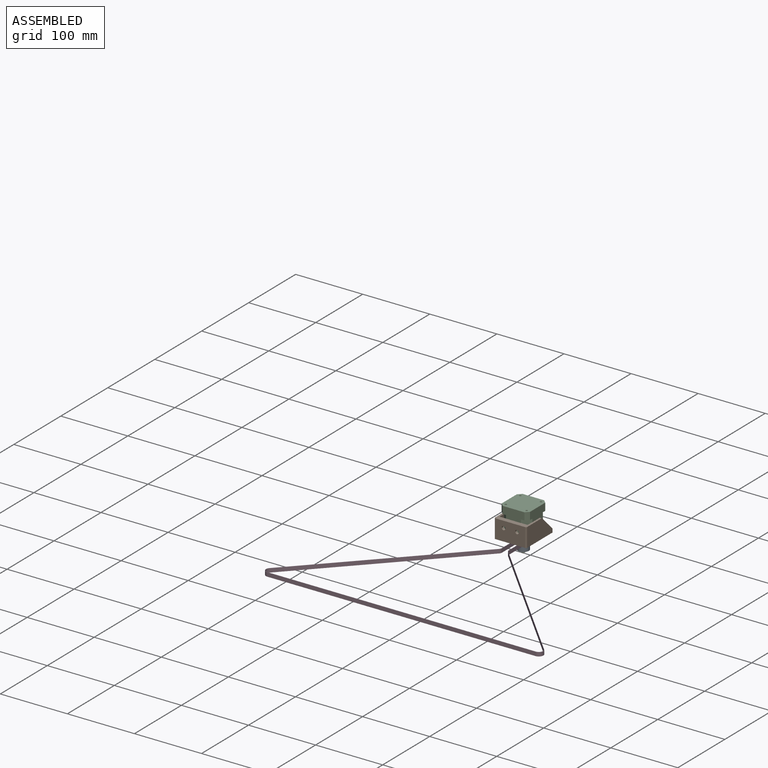
[diagram: assembled view]
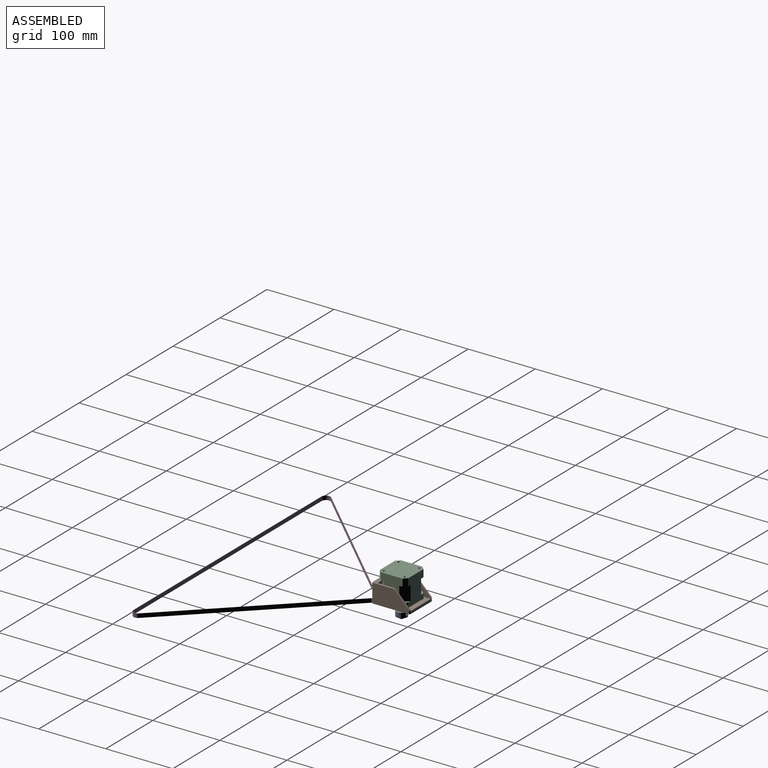
[diagram: assembled view, second angle]
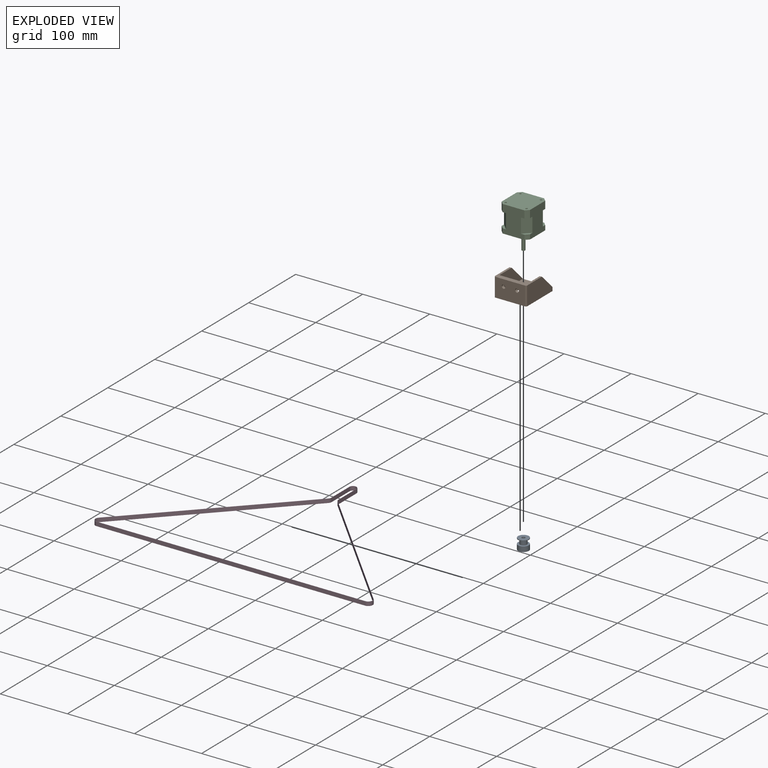
[diagram: exploded view]
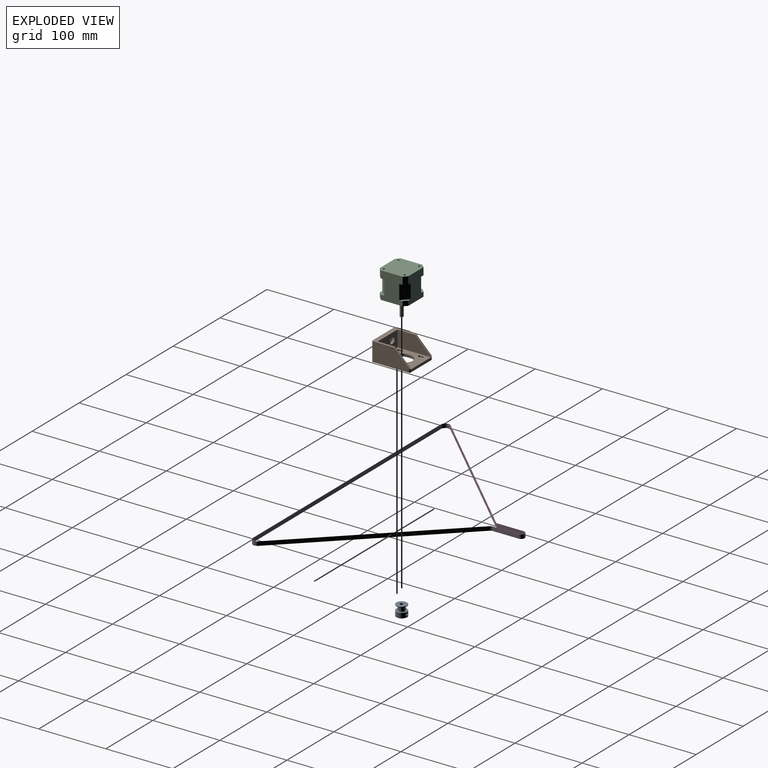
[diagram: exploded view, second angle]
ASSEMBLY  parts=4 mates=3
PART A: 10 faces, bbox 16x16x15.8 mm
  f0: cylinder r=2.5mm len=15.8mm, axis (0,0,-1), area 233.3mm2, adj f3,f6,f8,f9
  f1: cylinder r=8mm len=16mm, axis (0,0,-1), area 362.8mm2, adj f2,f3,f8,f9
  f2: plane 16x16mm, normal (0,0,1), area 119.5mm2, adj f1,f4
  f3: plane 16x16mm, normal (0,0,-1), area 181.4mm2, adj f0,f1
  f4: cylinder r=5.09mm len=10.19mm, axis (0,0,-1), area 233.7mm2, adj f2,f7
  f5: cylinder r=8mm len=16mm, axis (0,0,-1), area 50.3mm2, adj f6,f7
  f6: plane 16x16mm, normal (0,0,1), area 181.4mm2, adj f0,f5
  f7: plane 16x16mm, normal (0,0,-1), area 119.5mm2, adj f4,f5
  f8: cylinder r=1.5mm len=6mm, axis (0,1,0), area 53.5mm2, adj f0,f1
  f9: cylinder r=1.5mm len=6mm, axis (-1,0,0), area 53.5mm2, adj f0,f1
PART B: 45 faces, bbox 48x57x28 mm
  f0: plane 49.82x42mm, normal (0,0,1), area 1453.5mm2, adj f4,f5,f8,f9,f10,f11,f12,f14
  f1: plane 57x48mm, normal (0,0,-1), area 2093.6mm2, adj f6,f7,f8,f9,f10,f11,f12,f17
  f2: cylinder r=2.75mm len=5.5mm, axis (0,-1,0), area 51.8mm2, adj f17,f20
  f3: cylinder r=2.75mm len=5.5mm, axis (0,-1,0), area 51.8mm2, adj f17,f18
  f4: plane 49.82x24mm, normal (1,0,0), area 911.9mm2, adj f0,f13,f14,f15,f40,f43
  f5: plane 49.82x24mm, normal (-1,0,0), area 911.9mm2, adj f0,f13,f14,f16,f40,f44
  f6: plane 53x28mm, normal (-1,0,0), area 1241.9mm2, adj f1,f13,f15,f38,f41,f43
  f7: plane 53x28mm, normal (1,0,0), area 1241.9mm2, adj f1,f13,f16,f39,f42,f44
  f8: cylinder r=1.75mm len=4mm, axis (0,0,-1), area 22mm2, adj f0,f1,f28,f29
  f9: cylinder r=1.75mm len=4mm, axis (0,0,-1), area 22mm2, adj f0,f1,f34,f35
  f10: cylinder r=1.75mm len=4mm, axis (0,0,-1), area 22mm2, adj f0,f1,f22,f23
  f11: cylinder r=1.75mm len=4mm, axis (0,0,-1), area 22mm2, adj f0,f1,f25,f26
  f12: cylinder r=11.5mm len=23mm, axis (0,0,-1), area 144.5mm2, adj f0,f1,f31,f32
  f13: plane 48x32.17mm, normal (0,0,1), area 485.3mm2, adj f4,f5,f6,f7,f14,f17,f41,f42
  f14: plane 42x24mm, normal (0,-1,0), area 834.8mm2, adj f0,f4,f5,f13,f19,f21
  f15: plane 22.83x22.83mm, normal (0,-0.71,0.71), area 96.5mm2, adj f4,f6,f38,f40,f43
  f16: plane 22.83x22.83mm, normal (0,-0.71,0.71), area 96.5mm2, adj f5,f7,f39,f40,f44
  f17: plane 44x28mm, normal (0,1,0), area 1184.5mm2, adj f1,f2,f3,f13,f41,f42
  f18: plane 10.5x10.5mm, normal (0,-1,0), area 62.8mm2, adj f3,f19
  f19: cylinder r=5.25mm len=10.5mm, axis (0,-1,0), area 131.9mm2, adj f14,f18
  f20: plane 10.5x10.5mm, normal (0,-1,0), area 62.8mm2, adj f2,f21
  f21: cylinder r=5.25mm len=10.5mm, axis (0,-1,0), area 131.9mm2, adj f14,f20
  f22: plane 5x4mm, normal (1,0,0), area 20mm2, adj f0,f1,f10,f24
  f23: plane 5x4mm, normal (-1,0,0), area 20mm2, adj f0,f1,f10,f24
  f24: cylinder r=1.75mm len=4mm, axis (0,0,-1), area 22mm2, adj f0,f1,f22,f23
  f25: plane 5x4mm, normal (-1,0,0), area 20mm2, adj f0,f1,f11,f27
  f26: plane 5x4mm, normal (1,0,0), area 20mm2, adj f0,f1,f11,f27
  f27: cylinder r=1.75mm len=4mm, axis (0,0,-1), area 22mm2, adj f0,f1,f25,f26
  f28: plane 5x4mm, normal (-1,0,0), area 20mm2, adj f0,f1,f8,f30
  f29: plane 5x4mm, normal (1,0,0), area 20mm2, adj f0,f1,f8,f30
  f30: cylinder r=1.75mm len=4mm, axis (0,0,-1), area 22mm2, adj f0,f1,f28,f29
  f31: plane 5x4mm, normal (-1,0,0), area 20mm2, adj f0,f1,f12,f33
  f32: plane 5x4mm, normal (1,0,0), area 20mm2, adj f0,f1,f12,f33
  f33: cylinder r=11.5mm len=23mm, axis (0,0,-1), area 144.5mm2, adj f0,f1,f31,f32
  f34: plane 5x4mm, normal (-1,0,0), area 20mm2, adj f0,f1,f9,f36
  f35: plane 5x4mm, normal (1,0,0), area 20mm2, adj f0,f1,f9,f36
  f36: cylinder r=1.75mm len=4mm, axis (0,0,-1), area 22mm2, adj f0,f1,f34,f35
  f37: plane 44x3.17mm, normal (0,-1,0), area 139.5mm2, adj f1,f38,f39,f40
  f38: cylinder r=2mm len=6mm, axis (0,0,1), area 14.4mm2, adj f1,f6,f15,f37,f40
  f39: cylinder r=2mm len=6mm, axis (0,0,-1), area 14.4mm2, adj f1,f7,f16,f37,f40
  f40: cylinder r=2mm len=46.83mm, axis (1,0,0), area 41.4mm2, adj f0,f4,f5,f15,f16,f37,f38,f39
  f41: cylinder r=2mm len=28mm, axis (0,0,-1), area 88mm2, adj f1,f6,f13,f17
  f42: cylinder r=2mm len=28mm, axis (0,0,1), area 88mm2, adj f1,f7,f13,f17
  f43: cylinder r=2mm len=3mm, axis (1,0,0), area 4.7mm2, adj f4,f6,f13,f15
  f44: cylinder r=2mm len=3mm, axis (1,0,0), area 4.7mm2, adj f5,f7,f13,f16
PART C: 48 faces, bbox 42.3x65.8x42.3 mm
  f0: plane 10x10mm, normal (0,1,0), area 37.5mm2, adj f4,f5,f9,f27
  f1: plane 10x10mm, normal (0,1,0), area 37.5mm2, adj f5,f6,f10,f30
  f2: plane 10x10mm, normal (0,1,0), area 37.5mm2, adj f6,f7,f11,f29
  f3: plane 42.3x42.3mm, normal (0,-1,0), area 1330.9mm2, adj f4,f5,f6,f7,f9,f10,f11,f12
  f4: plane 39.8x32.3mm, normal (-1,0,0), area 1067.5mm2, adj f0,f3,f8,f9,f12,f27,f28,f31
  f5: plane 39.8x32.3mm, normal (0,0,-1), area 1067.5mm2, adj f0,f1,f3,f9,f10,f27,f30,f31
  f6: plane 39.8x32.3mm, normal (1,0,0), area 1067.5mm2, adj f1,f2,f3,f10,f11,f29,f30,f33
  f7: plane 39.8x32.3mm, normal (0,0,1), area 1067.5mm2, adj f2,f3,f8,f11,f12,f28,f29,f32
  f8: plane 10x10mm, normal (0,1,0), area 37.5mm2, adj f4,f7,f12,f28
  f9: plane 7x5mm, normal (-0.71,0,-0.71), area 49.5mm2, adj f0,f3,f4,f5
  f10: plane 7x5mm, normal (0.71,0,-0.71), area 49.5mm2, adj f1,f3,f5,f6
  f11: plane 7x5mm, normal (0.71,0,0.71), area 49.5mm2, adj f2,f3,f6,f7
  f12: plane 7x5mm, normal (-0.71,0,0.71), area 49.5mm2, adj f3,f4,f7,f8
  f13: cylinder r=11mm len=22mm, axis (0,1,0), area 138.2mm2, adj f3,f14
  f14: plane 22x22mm, normal (0,-1,0), area 360.5mm2, adj f13,f23
  f15: cylinder r=1.5mm len=4.5mm, axis (0,-1,0), area 42.4mm2, adj f3,f16
  f16: plane 3x3mm, normal (0,-1,0), area 7.1mm2, adj f15
  f17: cylinder r=1.5mm len=4.5mm, axis (0,-1,0), area 42.4mm2, adj f3,f18
  f18: plane 3x3mm, normal (0,-1,0), area 7.1mm2, adj f17
  f19: cylinder r=1.5mm len=4.5mm, axis (0,-1,0), area 42.4mm2, adj f3,f20
  f20: plane 3x3mm, normal (0,-1,0), area 7.1mm2, adj f19
  f21: cylinder r=1.5mm len=4.5mm, axis (0,-1,0), area 42.4mm2, adj f3,f22
  f22: plane 3x3mm, normal (0,-1,0), area 7.1mm2, adj f21
  f23: cylinder r=2.5mm len=24mm, axis (0,1,0), area 328.7mm2, adj f14,f24,f25,f26
  f24: plane 5x4.5mm, normal (0,-1,0), area 18.6mm2, adj f23,f25
  f25: plane 15x3mm, normal (0,0,1), area 45mm2, adj f23,f24,f26
  f26: plane 3x0.5mm, normal (0,-1,0), area 1mm2, adj f23,f25
  f27: plane 21.8x10mm, normal (-0.71,0,-0.71), area 308.3mm2, adj f0,f4,f5,f31
  f28: plane 21.8x10mm, normal (-0.71,0,0.71), area 308.3mm2, adj f4,f7,f8,f32
  f29: plane 21.8x10mm, normal (0.71,0,0.71), area 308.3mm2, adj f2,f6,f7,f33
  f30: plane 21.8x10mm, normal (0.71,0,-0.71), area 308.3mm2, adj f1,f5,f6,f34
  f31: plane 10x10mm, normal (0,-1,0), area 37.5mm2, adj f4,f5,f27,f37
  f32: plane 10x10mm, normal (0,-1,0), area 37.5mm2, adj f4,f7,f28,f36
  f33: plane 10x10mm, normal (0,-1,0), area 37.5mm2, adj f6,f7,f29,f39
  f34: plane 10x10mm, normal (0,-1,0), area 37.5mm2, adj f5,f6,f30,f38
  f35: plane 42.3x42.3mm, normal (0,1,0), area 1711mm2, adj f4,f5,f6,f7,f36,f37,f38,f39
  f36: plane 11x5mm, normal (-0.71,0,0.71), area 77.8mm2, adj f4,f7,f32,f35
  f37: plane 11x5mm, normal (-0.71,0,-0.71), area 77.8mm2, adj f4,f5,f31,f35
  f38: plane 11x5mm, normal (0.71,0,-0.71), area 77.8mm2, adj f5,f6,f34,f35
  f39: plane 11x5mm, normal (0.71,0,0.71), area 77.8mm2, adj f6,f7,f33,f35
  f40: cylinder r=1.5mm len=4.5mm, axis (0,1,0), area 42.4mm2, adj f35,f41
  f41: plane 3x3mm, normal (0,1,0), area 7.1mm2, adj f40
  f42: cylinder r=1.5mm len=4.5mm, axis (0,1,0), area 42.4mm2, adj f35,f43
  f43: plane 3x3mm, normal (0,1,0), area 7.1mm2, adj f42
  f44: cylinder r=1.5mm len=4.5mm, axis (0,1,0), area 42.4mm2, adj f35,f45
  f45: plane 3x3mm, normal (0,1,0), area 7.1mm2, adj f44
  f46: cylinder r=1.5mm len=4.5mm, axis (0,1,0), area 42.4mm2, adj f35,f47
  f47: plane 3x3mm, normal (0,1,0), area 7.1mm2, adj f46
PART D: 22 faces, bbox 413.4x265.1x6 mm
  f0: plane 206.35x197.99mm, normal (0.72,-0.69,0), area 1715.8mm2, adj f1,f19,f20,f21
  f1: cylinder r=5.41mm len=6mm, axis (0,0,-1), area 24.8mm2, adj f0,f2,f20,f21
  f2: plane 38.5x6mm, normal (1,0,0), area 231mm2, adj f1,f3,f20,f21
  f3: cylinder r=5.09mm len=10.19mm, axis (0,0,-1), area 96mm2, adj f2,f4,f20,f21
  f4: plane 38.5x6mm, normal (-1,0,0), area 231mm2, adj f3,f5,f20,f21
  f5: cylinder r=5.41mm len=6mm, axis (0,0,-1), area 25.6mm2, adj f4,f6,f20,f21
  f6: plane 206.16x197.81mm, normal (-0.72,-0.69,0), area 1714.2mm2, adj f5,f7,f20,f21
  f7: cylinder r=6.37mm len=10.87mm, axis (0,0,-1), area 90.1mm2, adj f6,f8,f20,f21
  f8: plane 400x6mm, normal (0,1,0), area 2400mm2, adj f7,f19,f20,f21
  f9: plane 38.5x6mm, normal (1,0,0), area 231mm2, adj f10,f18,f20,f21
  f10: cylinder r=5.41mm len=10.82mm, axis (0,0,-1), area 102mm2, adj f9,f11,f20,f21
  f11: plane 38.5x6mm, normal (-1,0,0), area 231mm2, adj f10,f12,f20,f21
  f12: cylinder r=5.09mm len=6mm, axis (0,0,-1), area 23.4mm2, adj f11,f13,f20,f21
  f13: plane 206.35x197.99mm, normal (-0.72,0.69,0), area 1715.8mm2, adj f12,f14,f20,f21
  f14: cylinder r=6.68mm len=11.31mm, axis (0,0,-1), area 93.6mm2, adj f13,f15,f20,f21
  f15: plane 400x6mm, normal (0,-1,0), area 2400mm2, adj f14,f16,f20,f21
  f16: cylinder r=6.68mm len=11.31mm, axis (0,0,-1), area 93.6mm2, adj f15,f17,f20,f21
  f17: plane 206.35x197.99mm, normal (0.72,0.69,0), area 1715.8mm2, adj f16,f18,f20,f21
  f18: cylinder r=5.09mm len=6mm, axis (0,0,-1), area 23.4mm2, adj f9,f17,f20,f21
  f19: cylinder r=6.37mm len=10.77mm, axis (0,0,-1), area 89.2mm2, adj f0,f8,f20,f21
  f20: plane 413.36x265.09mm, normal (0,0,1), area 347.8mm2, adj f0,f1,f2,f3,f4,f5,f6,f7
  f21: plane 413.36x265.09mm, normal (0,0,-1), area 347.8mm2, adj f0,f1,f2,f3,f4,f5,f6,f7
PLACE A rot(axis=(0,0,1),180deg) t=(-2.65,289.16,-248.56)mm
PLACE B rot(axis=(0,0,1),180deg) t=(-2.65,289.16,-230.06)mm
PLACE C rot(axis=(0,0.71,0.71),180deg) t=(-21.1,275.73,-219.06)mm
PLACE D rot(axis=(0.27,-0.78,-0.56),0deg) t=(-2.65,36.16,-239.76)mm
MATE fastened A.f0 <-> D.f3  axis (0,0,-1) through (-2.65,289.16,-233.76)mm
MATE fastened C.f13 <-> B.f12  axis (0,0,-1) through (-2.65,289.16,-226.06)mm
MATE fastened A.f0 <-> C.f13  axis (0,0,-1) through (-2.65,289.16,-248.56)mm
